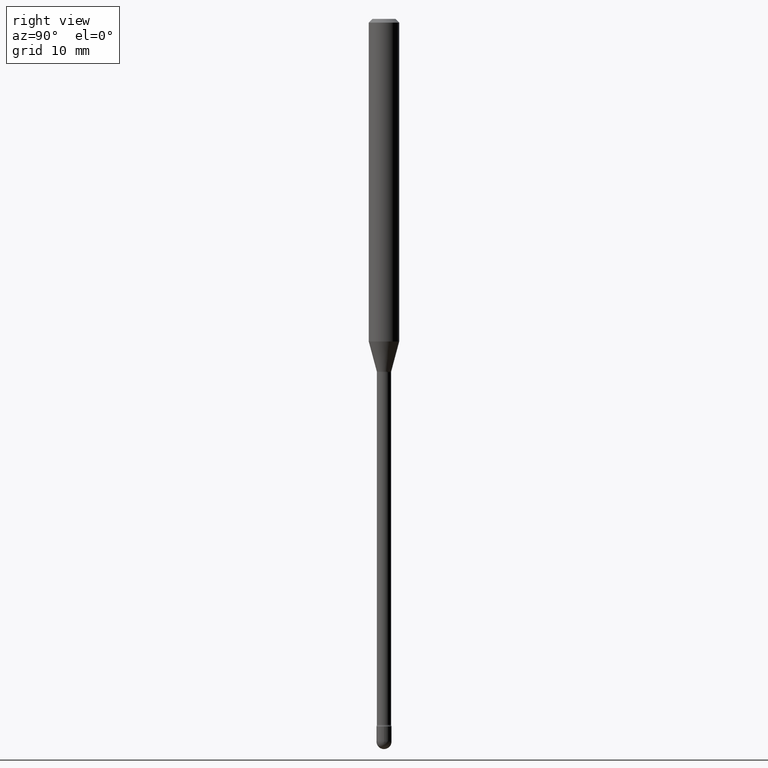
[diagram: clean part render]
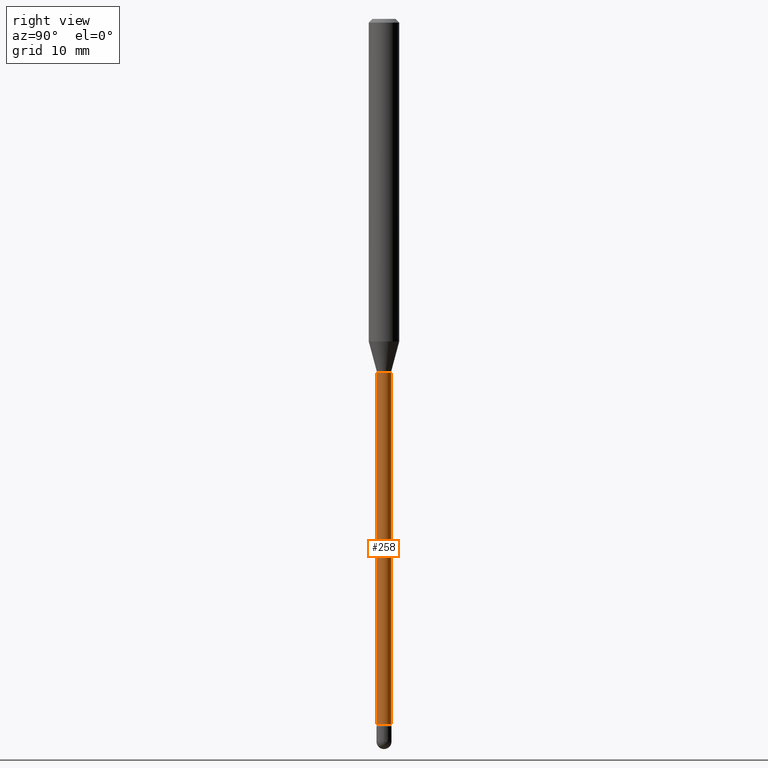
[diagram: same view with one face highlighted and labeled with its STEP entity id]
A machine part, right view. The second image highlights one B-rep face of the part: STEP entity #258.
In plain terms, the highlighted cylindrical surface (edge-blend (fillet) strip) has radius 0.7404 mm, axis along (-0, 0, 1).
Its self-contained STEP definition (entity closure, byte-faithful):
#28 = CYLINDRICAL_SURFACE ( 'NONE', #253, 0.02915000000000008210 ) ;
#51 = AXIS2_PLACEMENT_3D ( 'NONE', #92, #436, #179 ) ;
#57 = VERTEX_POINT ( 'NONE', #502 ) ;
#59 = DIRECTION ( 'NONE',  ( -6.982962677686265922E-15, -1.000000000000000000, 0.000000000000000000 ) ) ;
#88 = CARTESIAN_POINT ( 'NONE',  ( 2.071232074741406617E-16, 0.02914999999999492650, -1.451974787463811145 ) ) ;
#92 = CARTESIAN_POINT ( 'NONE',  ( 3.550750714246292471E-29, -5.069554812331978969E-15, -1.451974787463811145 ) ) ;
#105 = VERTEX_POINT ( 'NONE', #245 ) ;
#108 = EDGE_CURVE ( 'NONE', #105, #280, #223, .T. ) ;
#130 = VECTOR ( 'NONE', #297, 39.37007874015748143 ) ;
#138 = DIRECTION ( 'NONE',  ( -2.445463065132452416E-29, 3.491489560357349988E-15, 1.000000000000000000 ) ) ;
#179 = DIRECTION ( 'NONE',  ( -6.982962677686266711E-15, -1.000000000000000000, 0.000000000000000000 ) ) ;
#184 = LINE ( 'NONE', #393, #433 ) ;
#206 = DIRECTION ( 'NONE',  ( -2.445463065132452416E-29, 3.491489560357349594E-15, 1.000000000000000000 ) ) ;
#212 = EDGE_LOOP ( 'NONE', ( #268, #216, #322, #327 ) ) ;
#216 = ORIENTED_EDGE ( 'NONE', *, *, #108, .T. ) ;
#223 = LINE ( 'NONE', #391, #130 ) ;
#230 = CIRCLE ( 'NONE', #370, 0.02915000000000016536 ) ;
#245 = CARTESIAN_POINT ( 'NONE',  ( 2.136957277799217274E-16, 0.02914999999999004152, -2.899783525791635341 ) ) ;
#253 = AXIS2_PLACEMENT_3D ( 'NONE', #254, #206, #474 ) ;
#254 = CARTESIAN_POINT ( 'NONE',  ( -1.169113584055446105E-44, 1.669184350826100908E-30, 4.780733988912460139E-16 ) ) ;
#258 = ADVANCED_FACE ( 'NONE', ( #419 ), #28, .T. ) ;
#265 = CARTESIAN_POINT ( 'NONE',  ( 7.091313509203002417E-29, -1.012456390759772357E-14, -2.899783525791635341 ) ) ;
#268 = ORIENTED_EDGE ( 'NONE', *, *, #455, .T. ) ;
#276 = CIRCLE ( 'NONE', #51, 0.02915000000000000230 ) ;
#280 = VERTEX_POINT ( 'NONE', #88 ) ;
#283 = VERTEX_POINT ( 'NONE', #464 ) ;
#297 = DIRECTION ( 'NONE',  ( -2.445463065132452416E-29, 3.491489560357349988E-15, 1.000000000000000000 ) ) ;
#322 = ORIENTED_EDGE ( 'NONE', *, *, #440, .F. ) ;
#327 = ORIENTED_EDGE ( 'NONE', *, *, #437, .F. ) ;
#370 = AXIS2_PLACEMENT_3D ( 'NONE', #265, #451, #59 ) ;
#391 = CARTESIAN_POINT ( 'NONE',  ( 2.071232074740697629E-16, 0.02915000000000008210, 3.762964782068289992E-16 ) ) ;
#393 = CARTESIAN_POINT ( 'NONE',  ( -2.035533620545552294E-16, -0.02915000000000008210, 5.798503195756631272E-16 ) ) ;
#419 = FACE_OUTER_BOUND ( 'NONE', #212, .T. ) ;
#433 = VECTOR ( 'NONE', #138, 39.37007874015748143 ) ;
#436 = DIRECTION ( 'NONE',  ( -2.445463065132452416E-29, 3.491489560357349594E-15, 1.000000000000000000 ) ) ;
#437 = EDGE_CURVE ( 'NONE', #283, #57, #184, .T. ) ;
#440 = EDGE_CURVE ( 'NONE', #57, #280, #276, .T. ) ;
#451 = DIRECTION ( 'NONE',  ( -2.445463065132452416E-29, 3.491489560357349594E-15, 1.000000000000000000 ) ) ;
#455 = EDGE_CURVE ( 'NONE', #283, #105, #230, .T. ) ;
#464 = CARTESIAN_POINT ( 'NONE',  ( -2.035533620544848975E-16, -0.02915000000001028921, -2.899783525791635341 ) ) ;
#474 = DIRECTION ( 'NONE',  ( -6.982962677686265922E-15, -1.000000000000000000, 3.491489560357350383E-15 ) ) ;
#502 = CARTESIAN_POINT ( 'NONE',  ( -2.035533620545191636E-16, -0.02915000000000507463, -1.451974787463811145 ) ) ;